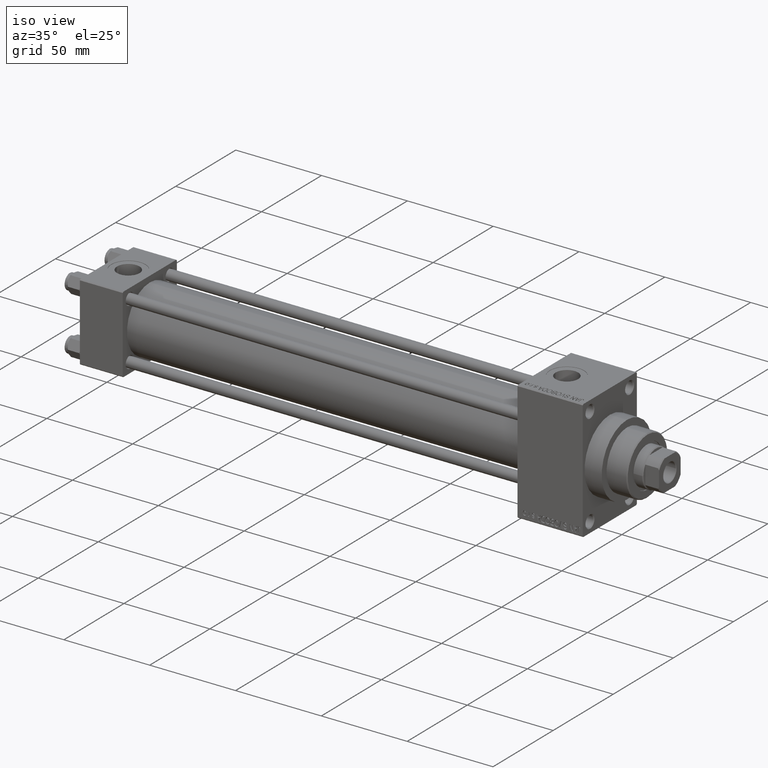
[diagram: clean part render]
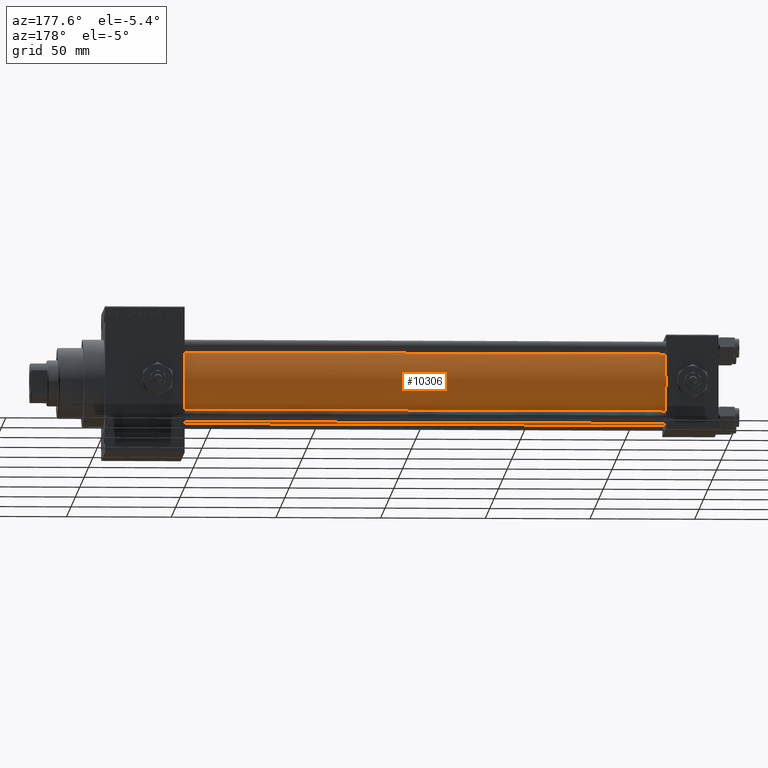
[diagram: tour spotlight — one face highlighted and labeled with its STEP entity id]
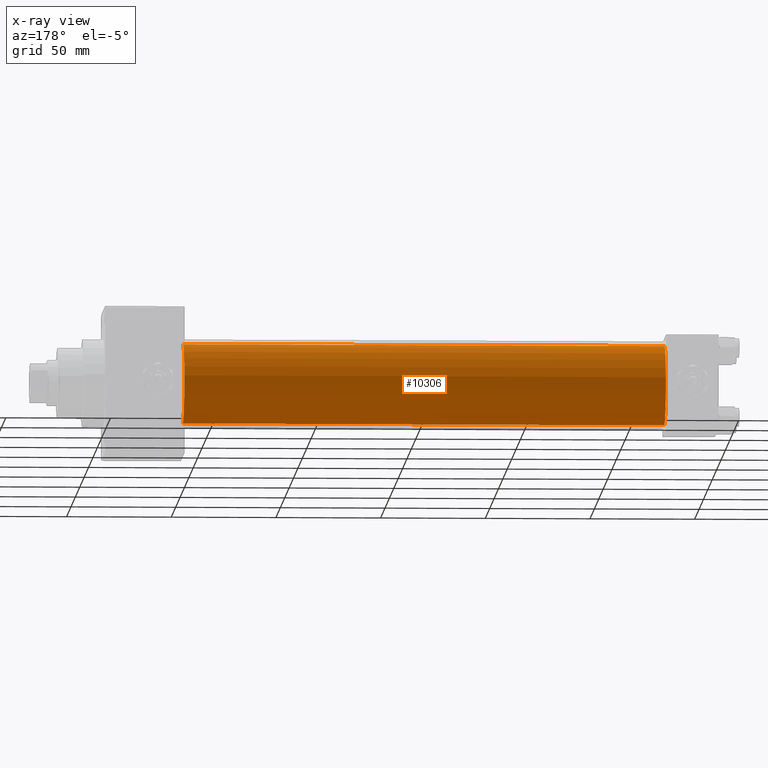
[diagram: x-ray of the same camera — body ghosted, this tour face saturated]
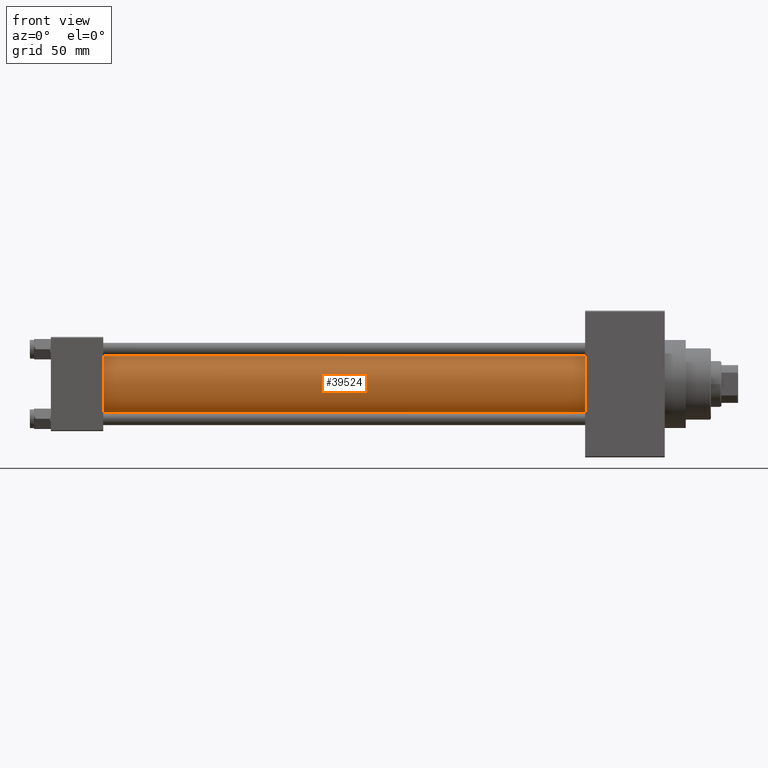
[diagram: tour spotlight — one face highlighted and labeled with its STEP entity id]
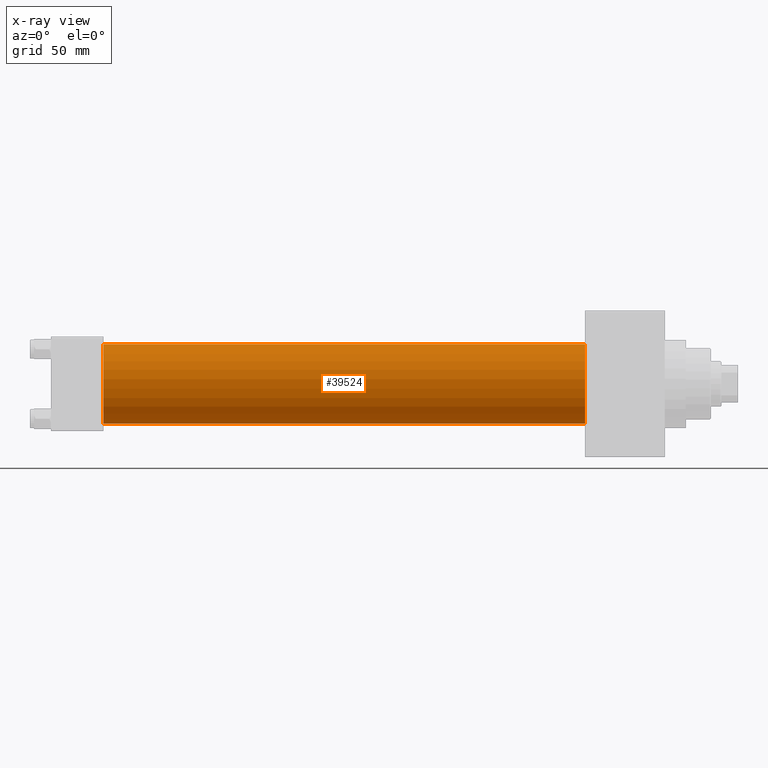
[diagram: x-ray of the same camera — body ghosted, this tour face saturated]
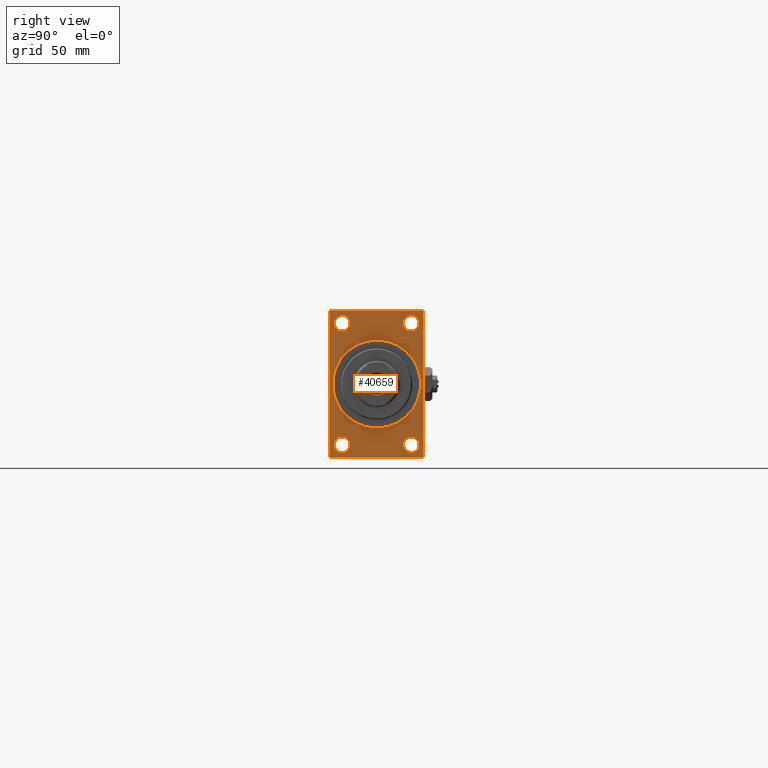
[diagram: tour spotlight — one face highlighted and labeled with its STEP entity id]
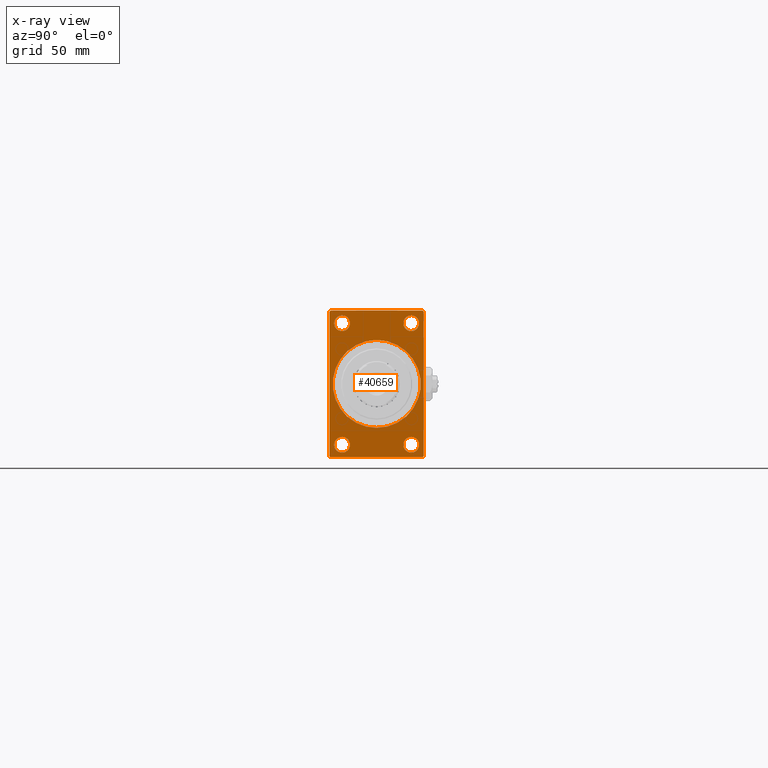
[diagram: x-ray of the same camera — body ghosted, this tour face saturated]
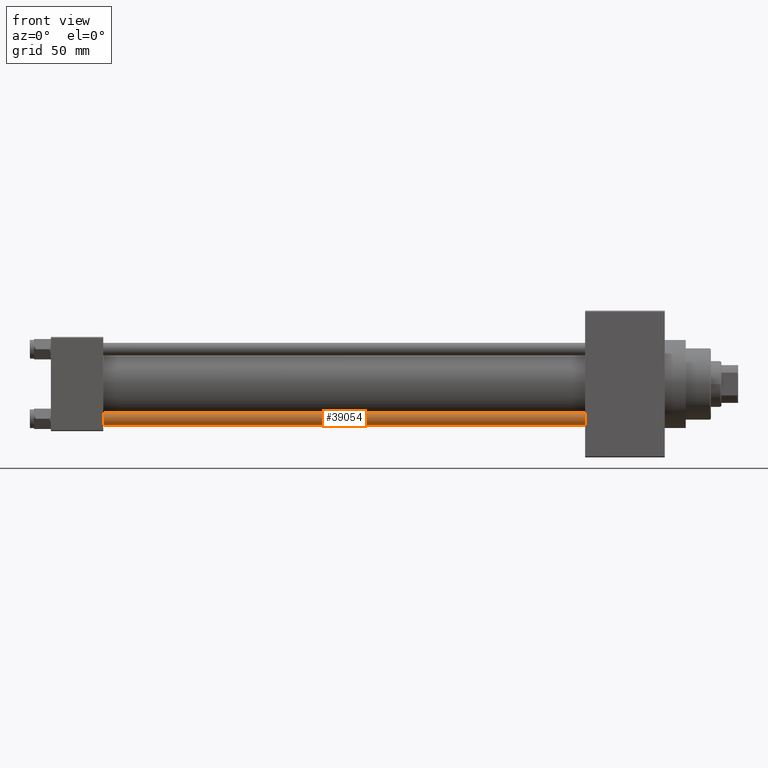
[diagram: tour spotlight — one face highlighted and labeled with its STEP entity id]
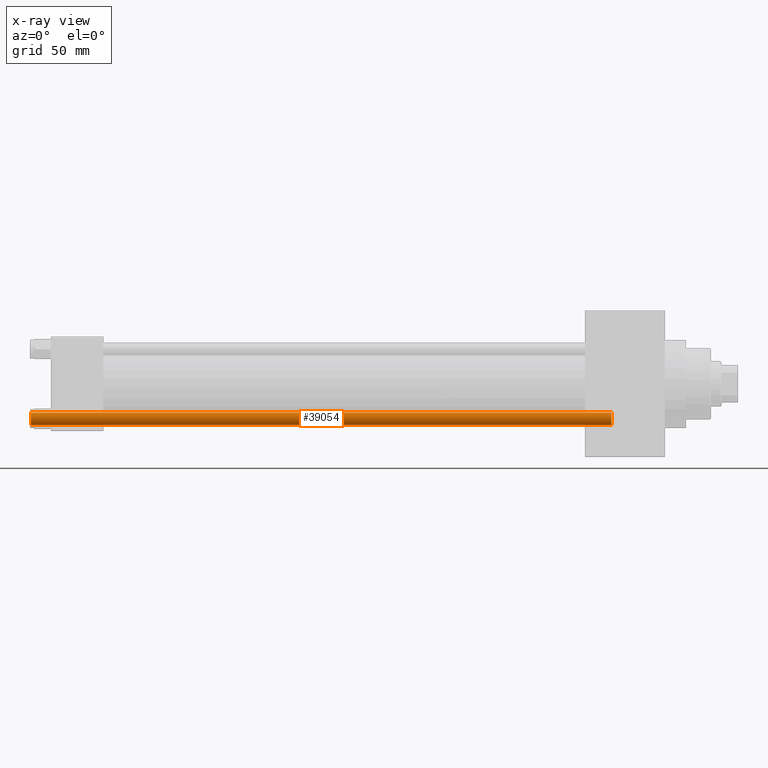
[diagram: x-ray of the same camera — body ghosted, this tour face saturated]
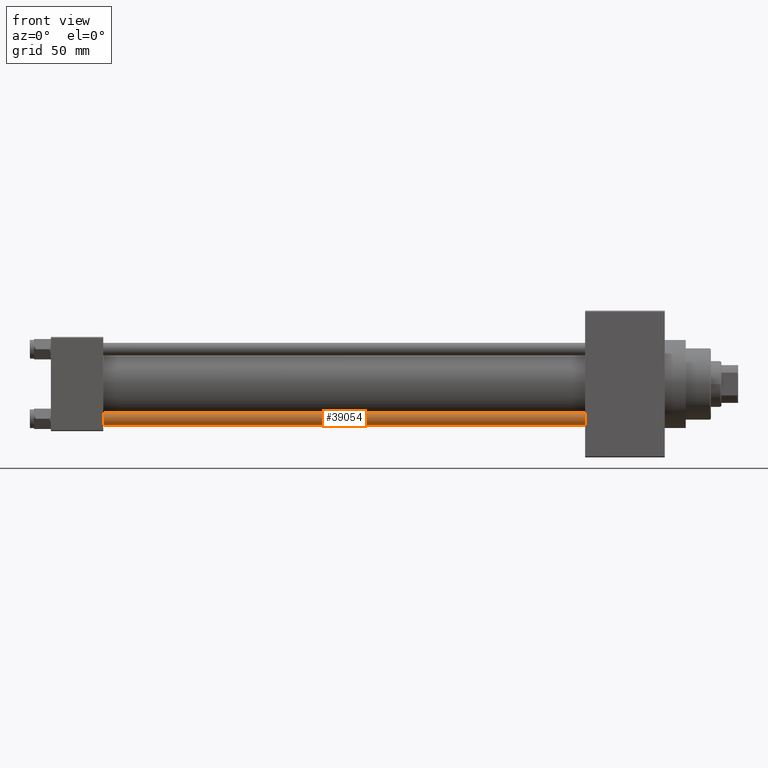
[diagram: tour spotlight — one face highlighted and labeled with its STEP entity id]
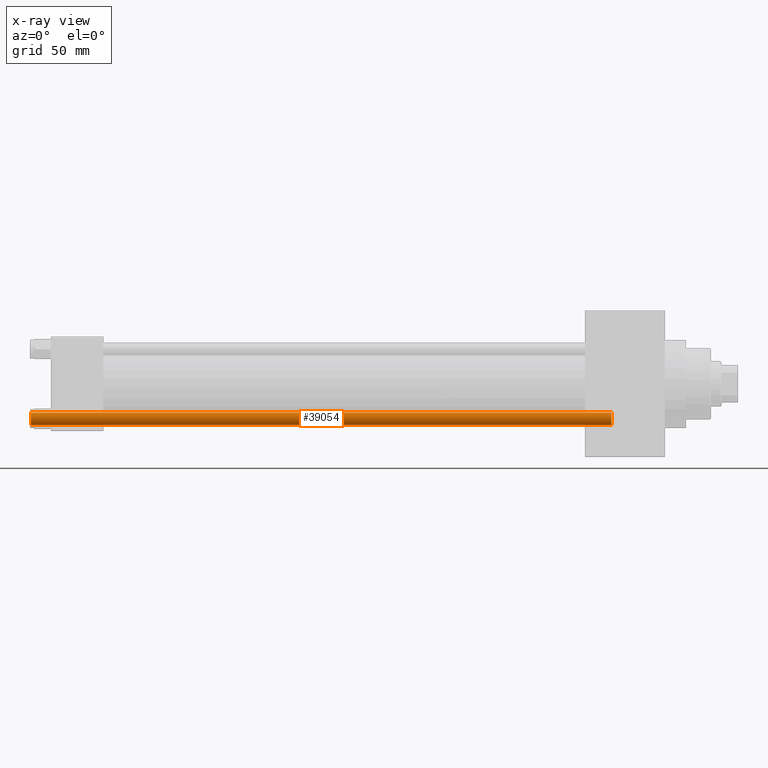
[diagram: x-ray of the same camera — body ghosted, this tour face saturated]
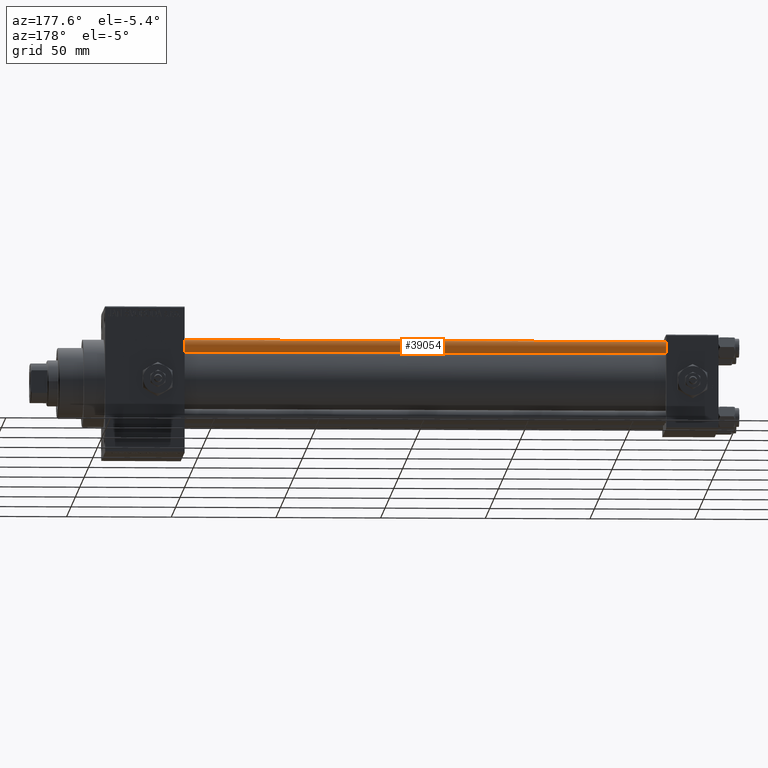
[diagram: tour spotlight — one face highlighted and labeled with its STEP entity id]
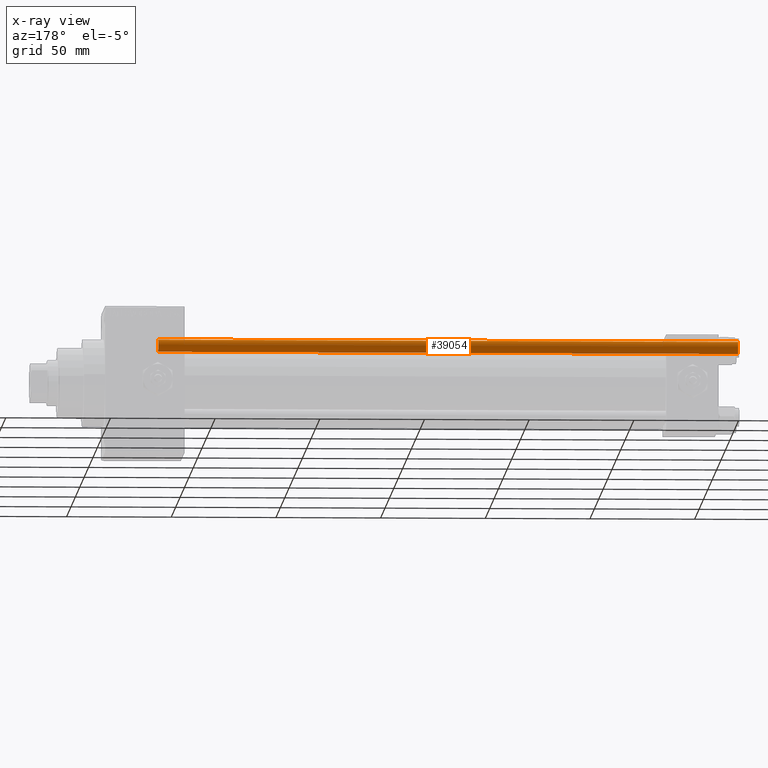
[diagram: x-ray of the same camera — body ghosted, this tour face saturated]
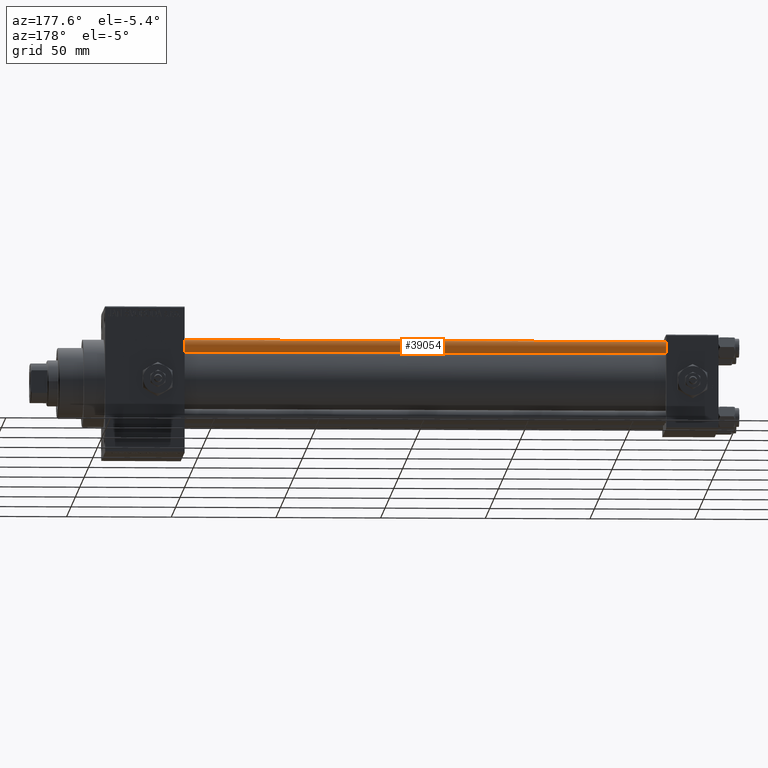
[diagram: tour spotlight — one face highlighted and labeled with its STEP entity id]
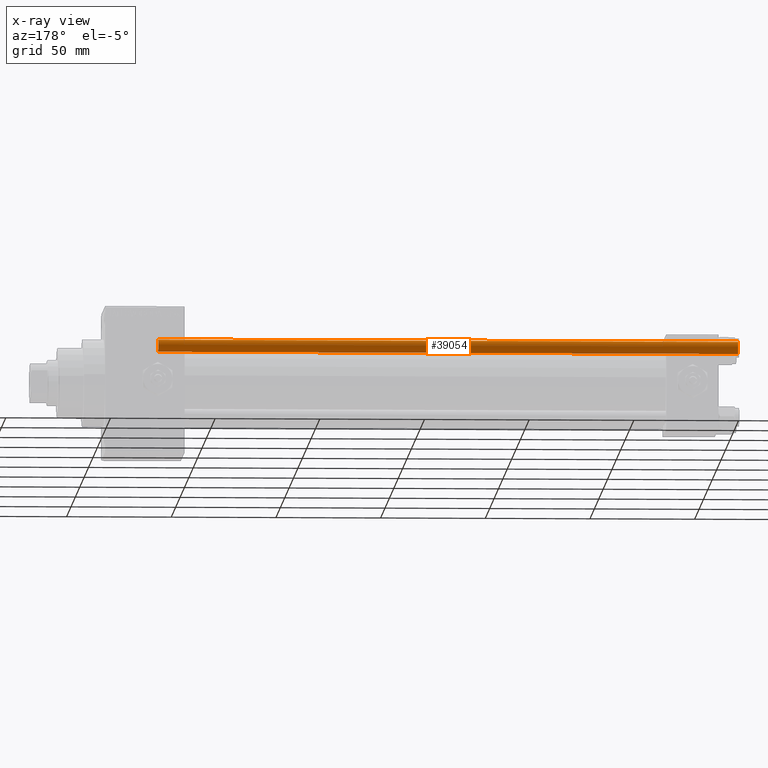
[diagram: x-ray of the same camera — body ghosted, this tour face saturated]
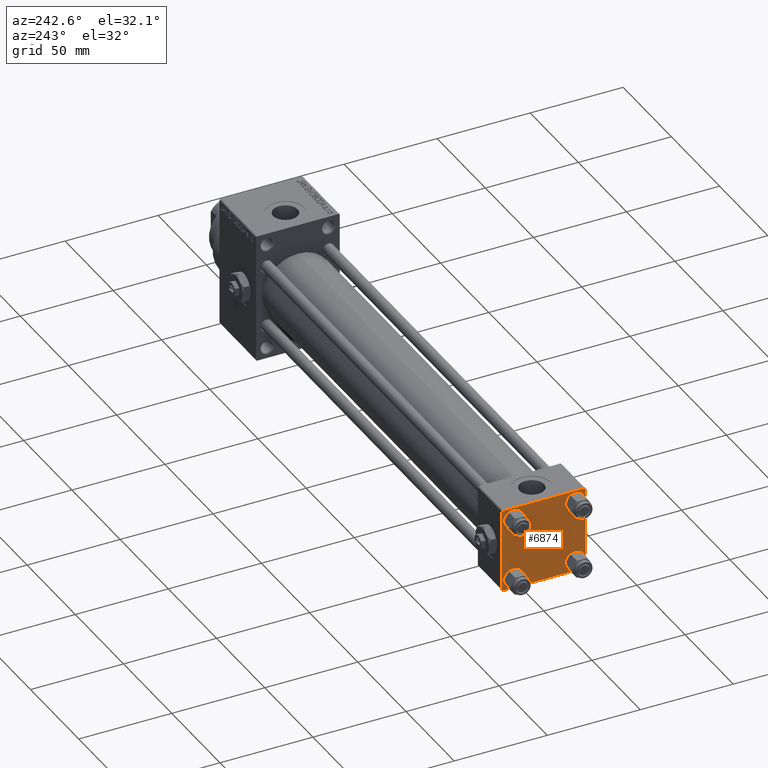
[diagram: tour spotlight — one face highlighted and labeled with its STEP entity id]
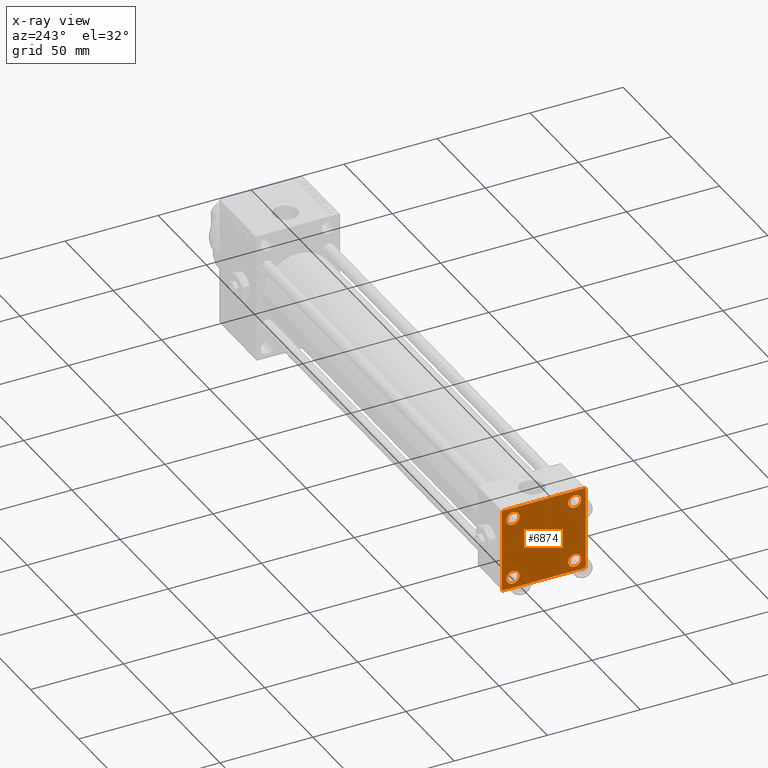
[diagram: x-ray of the same camera — body ghosted, this tour face saturated]
A machine part: a face-by-face anatomy tour. The part has 1201 B-rep faces; the first image is the clean iso view, then the 8 largest visible faces are spotlighted one at a time (largest first), each with its STEP entity span.

Face 1 — auxiliary view, entity #10306. An x-ray twin of the same camera follows (body ghosted, this face saturated) — the face is partly hidden behind the body. In plain terms, the highlighted cylindrical surface (partial cylindrical patch) has radius 19 mm, axis along (-1, -0, -0).
Definition (entity closure, byte-faithful):
#661 = DIRECTION ( 'NONE',  ( -1.000000000000000000, -0.000000000000000000, -0.000000000000000000 ) ) ;
#2758 = LINE ( 'NONE', #23066, #18360 ) ;
#4238 = CARTESIAN_POINT ( 'NONE',  ( 24.99999999999999289, -2.752562955852396712E-16, -19.00000000000000000 ) ) ;
#5123 = FACE_OUTER_BOUND ( 'NONE', #20737, .T. ) ;
#5631 = AXIS2_PLACEMENT_3D ( 'NONE', #10179, #17880, #25341 ) ;
#5919 = LINE ( 'NONE', #8907, #48787 ) ;
#7961 = EDGE_CURVE ( 'NONE', #47097, #36733, #13530, .T. ) ;
#8907 = CARTESIAN_POINT ( 'NONE',  ( 255.0000000000000000, -2.602085213965210642E-15, 19.00000000000000000 ) ) ;
#8971 = VERTEX_POINT ( 'NONE', #13657 ) ;
#9030 = EDGE_CURVE ( 'NONE', #28930, #47097, #2758, .T. ) ;
#9233 = CARTESIAN_POINT ( 'NONE',  ( 24.99999999999999289, -2.602085213965210642E-15, 19.00000000000000000 ) ) ;
#10179 = CARTESIAN_POINT ( 'NONE',  ( 24.99999999999999289, -2.602085213965210642E-15, 0.000000000000000000 ) ) ;
#10271 = ORIENTED_EDGE ( 'NONE', *, *, #9030, .T. ) ;
#10306 = ADVANCED_FACE ( 'NONE', ( #5123 ), #35405, .T. ) ;
#13530 = CIRCLE ( 'NONE', #5631, 19.00000000000000000 ) ;
#13657 = CARTESIAN_POINT ( 'NONE',  ( 255.0000000000000000, -2.602085213965210642E-15, 19.00000000000000000 ) ) ;
#16043 = DIRECTION ( 'NONE',  ( 0.000000000000000000, 0.000000000000000000, 1.000000000000000000 ) ) ;
#17880 = DIRECTION ( 'NONE',  ( 1.000000000000000000, -0.000000000000000000, 0.000000000000000000 ) ) ;
#18360 = VECTOR ( 'NONE', #22100, 1000.000000000000000 ) ;
#20737 = EDGE_LOOP ( 'NONE', ( #35192, #10271, #47744, #42783 ) ) ;
#22027 = DIRECTION ( 'NONE',  ( 1.000000000000000000, 0.000000000000000000, 0.000000000000000000 ) ) ;
#22100 = DIRECTION ( 'NONE',  ( -1.000000000000000000, -0.000000000000000000, -0.000000000000000000 ) ) ;
#23066 = CARTESIAN_POINT ( 'NONE',  ( 255.0000000000000000, -2.752562955852396712E-16, -19.00000000000000000 ) ) ;
#25064 = EDGE_CURVE ( 'NONE', #8971, #36733, #5919, .T. ) ;
#25341 = DIRECTION ( 'NONE',  ( 0.000000000000000000, 0.000000000000000000, 1.000000000000000000 ) ) ;
#25771 = CARTESIAN_POINT ( 'NONE',  ( 255.0000000000000000, -2.602085213965210642E-15, 0.000000000000000000 ) ) ;
#28930 = VERTEX_POINT ( 'NONE', #45391 ) ;
#33965 = AXIS2_PLACEMENT_3D ( 'NONE', #25771, #22027, #40912 ) ;
#34666 = CARTESIAN_POINT ( 'NONE',  ( 255.0000000000000000, -2.602085213965210642E-15, 0.000000000000000000 ) ) ;
#34888 = AXIS2_PLACEMENT_3D ( 'NONE', #34666, #661, #16043 ) ;
#35192 = ORIENTED_EDGE ( 'NONE', *, *, #38256, .F. ) ;
#35405 = CYLINDRICAL_SURFACE ( 'NONE', #34888, 19.00000000000000000 ) ;
#36733 = VERTEX_POINT ( 'NONE', #9233 ) ;
#38256 = EDGE_CURVE ( 'NONE', #28930, #8971, #42732, .T. ) ;
#40912 = DIRECTION ( 'NONE',  ( 0.000000000000000000, 0.000000000000000000, -1.000000000000000000 ) ) ;
#42732 = CIRCLE ( 'NONE', #33965, 19.00000000000000000 ) ;
#42783 = ORIENTED_EDGE ( 'NONE', *, *, #25064, .F. ) ;
#43672 = DIRECTION ( 'NONE',  ( -1.000000000000000000, -0.000000000000000000, -0.000000000000000000 ) ) ;
#45391 = CARTESIAN_POINT ( 'NONE',  ( 255.0000000000000000, -2.752562955852396712E-16, -19.00000000000000000 ) ) ;
#47097 = VERTEX_POINT ( 'NONE', #4238 ) ;
#47744 = ORIENTED_EDGE ( 'NONE', *, *, #7961, .T. ) ;
#48787 = VECTOR ( 'NONE', #43672, 1000.000000000000000 ) ;

Face 2 — front view, entity #39524. An x-ray twin of the same camera follows (body ghosted, this face saturated) — the face is partly hidden behind the body. In plain terms, the highlighted cylindrical surface (partial cylindrical patch) has radius 19 mm, axis along (-1, -0, -0).
Definition (entity closure, byte-faithful):
#1812 = CARTESIAN_POINT ( 'NONE',  ( 24.99999999999999289, -2.602085213965210642E-15, 0.000000000000000000 ) ) ;
#2758 = LINE ( 'NONE', #23066, #18360 ) ;
#2908 = EDGE_LOOP ( 'NONE', ( #23637, #36185, #34454, #19284 ) ) ;
#3057 = DIRECTION ( 'NONE',  ( 0.000000000000000000, 0.000000000000000000, 1.000000000000000000 ) ) ;
#4238 = CARTESIAN_POINT ( 'NONE',  ( 24.99999999999999289, -2.752562955852396712E-16, -19.00000000000000000 ) ) ;
#5919 = LINE ( 'NONE', #8907, #48787 ) ;
#6777 = CARTESIAN_POINT ( 'NONE',  ( 255.0000000000000000, -2.602085213965210642E-15, 0.000000000000000000 ) ) ;
#8907 = CARTESIAN_POINT ( 'NONE',  ( 255.0000000000000000, -2.602085213965210642E-15, 19.00000000000000000 ) ) ;
#8971 = VERTEX_POINT ( 'NONE', #13657 ) ;
#9008 = CARTESIAN_POINT ( 'NONE',  ( 255.0000000000000000, -2.602085213965210642E-15, 0.000000000000000000 ) ) ;
#9030 = EDGE_CURVE ( 'NONE', #28930, #47097, #2758, .T. ) ;
#9233 = CARTESIAN_POINT ( 'NONE',  ( 24.99999999999999289, -2.602085213965210642E-15, 19.00000000000000000 ) ) ;
#9267 = AXIS2_PLACEMENT_3D ( 'NONE', #1812, #16942, #32089 ) ;
#10161 = AXIS2_PLACEMENT_3D ( 'NONE', #9008, #24157, #39294 ) ;
#10498 = FACE_OUTER_BOUND ( 'NONE', #2908, .T. ) ;
#13657 = CARTESIAN_POINT ( 'NONE',  ( 255.0000000000000000, -2.602085213965210642E-15, 19.00000000000000000 ) ) ;
#16942 = DIRECTION ( 'NONE',  ( 1.000000000000000000, -0.000000000000000000, 0.000000000000000000 ) ) ;
#18360 = VECTOR ( 'NONE', #22100, 1000.000000000000000 ) ;
#19284 = ORIENTED_EDGE ( 'NONE', *, *, #30152, .T. ) ;
#21923 = DIRECTION ( 'NONE',  ( -1.000000000000000000, -0.000000000000000000, -0.000000000000000000 ) ) ;
#22100 = DIRECTION ( 'NONE',  ( -1.000000000000000000, -0.000000000000000000, -0.000000000000000000 ) ) ;
#23066 = CARTESIAN_POINT ( 'NONE',  ( 255.0000000000000000, -2.752562955852396712E-16, -19.00000000000000000 ) ) ;
#23553 = CIRCLE ( 'NONE', #9267, 19.00000000000000000 ) ;
#23637 = ORIENTED_EDGE ( 'NONE', *, *, #9030, .F. ) ;
#24157 = DIRECTION ( 'NONE',  ( 1.000000000000000000, 0.000000000000000000, 0.000000000000000000 ) ) ;
#25064 = EDGE_CURVE ( 'NONE', #8971, #36733, #5919, .T. ) ;
#25665 = CYLINDRICAL_SURFACE ( 'NONE', #46698, 19.00000000000000000 ) ;
#28930 = VERTEX_POINT ( 'NONE', #45391 ) ;
#30152 = EDGE_CURVE ( 'NONE', #36733, #47097, #23553, .T. ) ;
#32089 = DIRECTION ( 'NONE',  ( 0.000000000000000000, 0.000000000000000000, 1.000000000000000000 ) ) ;
#33923 = CIRCLE ( 'NONE', #10161, 19.00000000000000000 ) ;
#34454 = ORIENTED_EDGE ( 'NONE', *, *, #25064, .T. ) ;
#36185 = ORIENTED_EDGE ( 'NONE', *, *, #37345, .F. ) ;
#36733 = VERTEX_POINT ( 'NONE', #9233 ) ;
#37345 = EDGE_CURVE ( 'NONE', #8971, #28930, #33923, .T. ) ;
#39294 = DIRECTION ( 'NONE',  ( 0.000000000000000000, 0.000000000000000000, -1.000000000000000000 ) ) ;
#39524 = ADVANCED_FACE ( 'NONE', ( #10498 ), #25665, .T. ) ;
#43672 = DIRECTION ( 'NONE',  ( -1.000000000000000000, -0.000000000000000000, -0.000000000000000000 ) ) ;
#45391 = CARTESIAN_POINT ( 'NONE',  ( 255.0000000000000000, -2.752562955852396712E-16, -19.00000000000000000 ) ) ;
#46698 = AXIS2_PLACEMENT_3D ( 'NONE', #6777, #21923, #3057 ) ;
#47097 = VERTEX_POINT ( 'NONE', #4238 ) ;
#48787 = VECTOR ( 'NONE', #43672, 1000.000000000000000 ) ;

Face 3 — right view, entity #40659. An x-ray twin of the same camera follows (body ghosted, this face saturated) — the face is partly hidden behind the body. In plain terms, the highlighted planar face has unit normal (-1, 0, 0).
Definition (entity closure, byte-faithful):
#86 = CARTESIAN_POINT ( 'NONE',  ( 293.0000000000000000, -16.50000000000000000, -25.24999999999993605 ) ) ;
#609 = AXIS2_PLACEMENT_3D ( 'NONE', #15969, #9263, #12004 ) ;
#762 = CARTESIAN_POINT ( 'NONE',  ( 293.0000000000000000, -22.50000000000000355, 35.00000000000000000 ) ) ;
#844 = EDGE_CURVE ( 'NONE', #31355, #25077, #21951, .T. ) ;
#1410 = LINE ( 'NONE', #39889, #22448 ) ;
#1925 = VERTEX_POINT ( 'NONE', #37284 ) ;
#2123 = AXIS2_PLACEMENT_3D ( 'NONE', #48329, #29215, #22001 ) ;
#2334 = CARTESIAN_POINT ( 'NONE',  ( 293.0000000000000000, 16.50000000000000000, -25.24999999999993605 ) ) ;
#2379 = DIRECTION ( 'NONE',  ( -1.000000000000000000, -0.000000000000000000, -0.000000000000000000 ) ) ;
#2567 = CARTESIAN_POINT ( 'NONE',  ( 293.0000000000000000, 22.49999999999999645, 34.50000000000000000 ) ) ;
#2955 = DIRECTION ( 'NONE',  ( -1.000000000000000000, -0.000000000000000000, -0.000000000000000000 ) ) ;
#4053 = VERTEX_POINT ( 'NONE', #86 ) ;
#4126 = CARTESIAN_POINT ( 'NONE',  ( 293.0000000000000000, 16.50000000000000000, 32.75000000000006395 ) ) ;
#4510 = LINE ( 'NONE', #26392, #32608 ) ;
#4518 = DIRECTION ( 'NONE',  ( -0.000000000000000000, 0.000000000000000000, 1.000000000000000000 ) ) ;
#4706 = ORIENTED_EDGE ( 'NONE', *, *, #36574, .T. ) ;
#4787 = AXIS2_PLACEMENT_3D ( 'NONE', #43062, #47029, #42563 ) ;
#4906 = CARTESIAN_POINT ( 'NONE',  ( 293.0000000000000000, 0.000000000000000000, 21.00000000000000000 ) ) ;
#4910 = VERTEX_POINT ( 'NONE', #42180 ) ;
#5264 = CIRCLE ( 'NONE', #17961, 3.750000000000055511 ) ;
#5487 = CARTESIAN_POINT ( 'NONE',  ( 293.0000000000000000, -22.50000000000000355, -34.50000000000000000 ) ) ;
#5672 = CARTESIAN_POINT ( 'NONE',  ( 293.0000000000000000, 22.49999999999999645, -34.50000000000000000 ) ) ;
#5675 = EDGE_CURVE ( 'NONE', #4910, #25367, #26138, .T. ) ;
#5706 = ORIENTED_EDGE ( 'NONE', *, *, #7850, .T. ) ;
#6281 = AXIS2_PLACEMENT_3D ( 'NONE', #22401, #22879, #14933 ) ;
#6342 = VERTEX_POINT ( 'NONE', #34659 ) ;
#7068 = CARTESIAN_POINT ( 'NONE',  ( 293.0000000000000000, 16.50000000000000000, 29.00000000000000355 ) ) ;
#7629 = CARTESIAN_POINT ( 'NONE',  ( 293.0000000000000000, 22.49999999999999645, -35.00000000000000000 ) ) ;
#7850 = EDGE_CURVE ( 'NONE', #46018, #45824, #42984, .T. ) ;
#7869 = DIRECTION ( 'NONE',  ( 1.000000000000000000, 0.000000000000000000, 0.000000000000000000 ) ) ;
#8232 = CARTESIAN_POINT ( 'NONE',  ( 293.0000000000000000, 0.000000000000000000, 0.000000000000000000 ) ) ;
#8290 = VERTEX_POINT ( 'NONE', #16508 ) ;
#8308 = EDGE_CURVE ( 'NONE', #8290, #4053, #24681, .T. ) ;
#8579 = VECTOR ( 'NONE', #11496, 1000.000000000000000 ) ;
#9004 = VERTEX_POINT ( 'NONE', #32780 ) ;
#9102 = ORIENTED_EDGE ( 'NONE', *, *, #33258, .T. ) ;
#9195 = DIRECTION ( 'NONE',  ( -0.000000000000000000, -0.7071067811865672237, -0.7071067811865279218 ) ) ;
#9263 = DIRECTION ( 'NONE',  ( -1.000000000000000000, -0.000000000000000000, -0.000000000000000000 ) ) ;
#9546 = EDGE_CURVE ( 'NONE', #31355, #25802, #4510, .T. ) ;
#10028 = CIRCLE ( 'NONE', #2123, 3.750000000000058620 ) ;
#11496 = DIRECTION ( 'NONE',  ( 0.000000000000000000, 0.7071067811865279218, -0.7071067811865671127 ) ) ;
#11903 = CIRCLE ( 'NONE', #35684, 21.00000000000000000 ) ;
#12004 = DIRECTION ( 'NONE',  ( 0.000000000000000000, 0.000000000000000000, 1.000000000000000000 ) ) ;
#12569 = DIRECTION ( 'NONE',  ( -0.000000000000000000, 0.7071067811865672237, 0.7071067811865279218 ) ) ;
#12837 = VERTEX_POINT ( 'NONE', #33614 ) ;
#13321 = ORIENTED_EDGE ( 'NONE', *, *, #8308, .T. ) ;
#14348 = LINE ( 'NONE', #29513, #35075 ) ;
#14933 = DIRECTION ( 'NONE',  ( 0.000000000000000000, 0.000000000000000000, -1.000000000000000000 ) ) ;
#15038 = VERTEX_POINT ( 'NONE', #2334 ) ;
#15692 = LINE ( 'NONE', #41797, #8579 ) ;
#15895 = DIRECTION ( 'NONE',  ( 0.000000000000000000, 0.000000000000000000, -1.000000000000000000 ) ) ;
#15969 = CARTESIAN_POINT ( 'NONE',  ( 293.0000000000000000, 16.50000000000000000, -28.99999999999999289 ) ) ;
#16308 = EDGE_CURVE ( 'NONE', #25802, #46018, #14348, .T. ) ;
#16508 = CARTESIAN_POINT ( 'NONE',  ( 293.0000000000000000, -16.50000000000000000, -32.75000000000005684 ) ) ;
#16579 = EDGE_CURVE ( 'NONE', #12837, #25077, #1410, .T. ) ;
#16998 = AXIS2_PLACEMENT_3D ( 'NONE', #25667, #25418, #40559 ) ;
#17147 = ORIENTED_EDGE ( 'NONE', *, *, #9546, .T. ) ;
#17766 = DIRECTION ( 'NONE',  ( 0.000000000000000000, 0.000000000000000000, 1.000000000000000000 ) ) ;
#17961 = AXIS2_PLACEMENT_3D ( 'NONE', #25798, #2955, #44908 ) ;
#19174 = EDGE_LOOP ( 'NONE', ( #36673, #4706, #25581, #28272, #36721, #17147, #30735, #5706 ) ) ;
#19204 = ORIENTED_EDGE ( 'NONE', *, *, #44542, .T. ) ;
#19429 = CARTESIAN_POINT ( 'NONE',  ( 293.0000000000000000, -22.50000000000000355, 34.50000000000000000 ) ) ;
#19535 = CARTESIAN_POINT ( 'NONE',  ( 293.0000000000000000, 0.000000000000000000, 0.000000000000000000 ) ) ;
#19662 = FACE_BOUND ( 'NONE', #26954, .T. ) ;
#19708 = DIRECTION ( 'NONE',  ( 0.000000000000000000, 0.000000000000000000, 1.000000000000000000 ) ) ;
#19808 = ORIENTED_EDGE ( 'NONE', *, *, #27502, .T. ) ;
#20403 = EDGE_CURVE ( 'NONE', #15038, #9004, #28124, .T. ) ;
#20634 = FACE_BOUND ( 'NONE', #36369, .T. ) ;
#21244 = DIRECTION ( 'NONE',  ( -1.000000000000000000, -0.000000000000000000, -0.000000000000000000 ) ) ;
#21951 = LINE ( 'NONE', #34322, #46212 ) ;
#22001 = DIRECTION ( 'NONE',  ( 0.000000000000000000, 0.000000000000000000, 1.000000000000000000 ) ) ;
#22016 = VERTEX_POINT ( 'NONE', #4126 ) ;
#22029 = CIRCLE ( 'NONE', #609, 3.750000000000055511 ) ;
#22401 = CARTESIAN_POINT ( 'NONE',  ( 293.0000000000000000, 0.000000000000000000, 0.000000000000000000 ) ) ;
#22448 = VECTOR ( 'NONE', #12569, 1000.000000000000000 ) ;
#22879 = DIRECTION ( 'NONE',  ( 1.000000000000000000, 0.000000000000000000, 0.000000000000000000 ) ) ;
#23386 = FACE_OUTER_BOUND ( 'NONE', #19174, .T. ) ;
#24422 = CARTESIAN_POINT ( 'NONE',  ( 293.0000000000000000, -16.50000000000000000, 29.00000000000000711 ) ) ;
#24432 = EDGE_LOOP ( 'NONE', ( #42710, #48476 ) ) ;
#24681 = CIRCLE ( 'NONE', #38135, 3.750000000000055511 ) ;
#24970 = DIRECTION ( 'NONE',  ( 0.000000000000000000, 0.000000000000000000, 1.000000000000000000 ) ) ;
#25077 = VERTEX_POINT ( 'NONE', #5672 ) ;
#25367 = VERTEX_POINT ( 'NONE', #37084 ) ;
#25418 = DIRECTION ( 'NONE',  ( -1.000000000000000000, -0.000000000000000000, -0.000000000000000000 ) ) ;
#25581 = ORIENTED_EDGE ( 'NONE', *, *, #28932, .F. ) ;
#25667 = CARTESIAN_POINT ( 'NONE',  ( 293.0000000000000000, 16.50000000000000000, -28.99999999999999289 ) ) ;
#25798 = CARTESIAN_POINT ( 'NONE',  ( 293.0000000000000000, -16.50000000000000000, -28.99999999999999289 ) ) ;
#25802 = VERTEX_POINT ( 'NONE', #48392 ) ;
#26138 = CIRCLE ( 'NONE', #38808, 3.750000000000055511 ) ;
#26392 = CARTESIAN_POINT ( 'NONE',  ( 293.0000000000000000, 22.00000000000002132, 35.00000000000000000 ) ) ;
#26954 = EDGE_LOOP ( 'NONE', ( #13321, #9102 ) ) ;
#26992 = DIRECTION ( 'NONE',  ( 0.000000000000000000, 0.000000000000000000, -1.000000000000000000 ) ) ;
#27078 = VERTEX_POINT ( 'NONE', #33423 ) ;
#27413 = DIRECTION ( 'NONE',  ( -1.000000000000000000, -0.000000000000000000, -0.000000000000000000 ) ) ;
#27502 = EDGE_CURVE ( 'NONE', #27078, #22016, #40914, .T. ) ;
#28124 = CIRCLE ( 'NONE', #16998, 3.750000000000055511 ) ;
#28272 = ORIENTED_EDGE ( 'NONE', *, *, #16579, .T. ) ;
#28932 = EDGE_CURVE ( 'NONE', #12837, #6342, #48634, .T. ) ;
#29140 = CIRCLE ( 'NONE', #6281, 21.00000000000000000 ) ;
#29172 = EDGE_CURVE ( 'NONE', #22016, #27078, #10028, .T. ) ;
#29215 = DIRECTION ( 'NONE',  ( -1.000000000000000000, -0.000000000000000000, -0.000000000000000000 ) ) ;
#29513 = CARTESIAN_POINT ( 'NONE',  ( 293.0000000000000000, 22.49999999999999645, 35.00000000000000000 ) ) ;
#29514 = DIRECTION ( 'NONE',  ( 0.000000000000000000, -1.000000000000000000, 0.000000000000000000 ) ) ;
#30735 = ORIENTED_EDGE ( 'NONE', *, *, #16308, .T. ) ;
#31355 = VERTEX_POINT ( 'NONE', #2567 ) ;
#31411 = VECTOR ( 'NONE', #29514, 1000.000000000000000 ) ;
#31440 = EDGE_CURVE ( 'NONE', #35130, #1925, #29140, .T. ) ;
#32525 = VECTOR ( 'NONE', #9195, 1000.000000000000000 ) ;
#32608 = VECTOR ( 'NONE', #41531, 1000.000000000000000 ) ;
#32780 = CARTESIAN_POINT ( 'NONE',  ( 293.0000000000000000, 16.50000000000000000, -32.75000000000005684 ) ) ;
#33258 = EDGE_CURVE ( 'NONE', #4053, #8290, #5264, .T. ) ;
#33423 = CARTESIAN_POINT ( 'NONE',  ( 293.0000000000000000, 16.50000000000000000, 25.24999999999994671 ) ) ;
#33614 = CARTESIAN_POINT ( 'NONE',  ( 293.0000000000000000, 21.99999999999996803, -35.00000000000000000 ) ) ;
#33771 = CARTESIAN_POINT ( 'NONE',  ( 293.0000000000000000, -21.99999999999996092, 35.00000000000000000 ) ) ;
#34322 = CARTESIAN_POINT ( 'NONE',  ( 293.0000000000000000, 22.49999999999999645, 35.00000000000000000 ) ) ;
#34659 = CARTESIAN_POINT ( 'NONE',  ( 293.0000000000000000, -22.00000000000001776, -35.00000000000000000 ) ) ;
#34821 = ORIENTED_EDGE ( 'NONE', *, *, #31440, .F. ) ;
#35075 = VECTOR ( 'NONE', #44666, 1000.000000000000000 ) ;
#35130 = VERTEX_POINT ( 'NONE', #4906 ) ;
#35684 = AXIS2_PLACEMENT_3D ( 'NONE', #19535, #7869, #26992 ) ;
#35779 = FACE_BOUND ( 'NONE', #38076, .T. ) ;
#36199 = ORIENTED_EDGE ( 'NONE', *, *, #5675, .T. ) ;
#36369 = EDGE_LOOP ( 'NONE', ( #19808, #45672 ) ) ;
#36574 = EDGE_CURVE ( 'NONE', #44904, #6342, #15692, .T. ) ;
#36673 = ORIENTED_EDGE ( 'NONE', *, *, #38620, .T. ) ;
#36721 = ORIENTED_EDGE ( 'NONE', *, *, #844, .F. ) ;
#37084 = CARTESIAN_POINT ( 'NONE',  ( 293.0000000000000000, -16.50000000000000000, 25.24999999999995381 ) ) ;
#37284 = CARTESIAN_POINT ( 'NONE',  ( 293.0000000000000000, 2.571758278209441661E-15, -21.00000000000000000 ) ) ;
#37587 = DIRECTION ( 'NONE',  ( 0.000000000000000000, 0.000000000000000000, -1.000000000000000000 ) ) ;
#38076 = EDGE_LOOP ( 'NONE', ( #34821, #42972 ) ) ;
#38135 = AXIS2_PLACEMENT_3D ( 'NONE', #47068, #2379, #24970 ) ;
#38369 = EDGE_LOOP ( 'NONE', ( #19204, #36199 ) ) ;
#38503 = LINE ( 'NONE', #762, #48194 ) ;
#38528 = DIRECTION ( 'NONE',  ( -1.000000000000000000, 0.000000000000000000, -0.000000000000000000 ) ) ;
#38620 = EDGE_CURVE ( 'NONE', #45824, #44904, #38503, .T. ) ;
#38808 = AXIS2_PLACEMENT_3D ( 'NONE', #24422, #27413, #19708 ) ;
#39433 = EDGE_CURVE ( 'NONE', #9004, #15038, #22029, .T. ) ;
#39512 = FACE_BOUND ( 'NONE', #24432, .T. ) ;
#39889 = CARTESIAN_POINT ( 'NONE',  ( 293.0000000000000000, 22.49999999999999645, -34.50000000000000000 ) ) ;
#40559 = DIRECTION ( 'NONE',  ( 0.000000000000000000, 0.000000000000000000, 1.000000000000000000 ) ) ;
#40659 = ADVANCED_FACE ( 'NONE', ( #42261, #19662, #39512, #20634, #35779, #23386 ), #47216, .F. ) ;
#40914 = CIRCLE ( 'NONE', #47245, 3.750000000000058620 ) ;
#41531 = DIRECTION ( 'NONE',  ( 0.000000000000000000, -0.7071067811865279218, 0.7071067811865671127 ) ) ;
#41797 = CARTESIAN_POINT ( 'NONE',  ( 293.0000000000000000, -22.00000000000002842, -35.00000000000000000 ) ) ;
#42046 = CIRCLE ( 'NONE', #4787, 3.750000000000055511 ) ;
#42180 = CARTESIAN_POINT ( 'NONE',  ( 293.0000000000000000, -16.50000000000000000, 32.75000000000006395 ) ) ;
#42261 = FACE_BOUND ( 'NONE', #38369, .T. ) ;
#42563 = DIRECTION ( 'NONE',  ( 0.000000000000000000, 0.000000000000000000, 1.000000000000000000 ) ) ;
#42710 = ORIENTED_EDGE ( 'NONE', *, *, #39433, .T. ) ;
#42972 = ORIENTED_EDGE ( 'NONE', *, *, #45129, .F. ) ;
#42984 = LINE ( 'NONE', #43226, #32525 ) ;
#43062 = CARTESIAN_POINT ( 'NONE',  ( 293.0000000000000000, -16.50000000000000000, 29.00000000000000711 ) ) ;
#43226 = CARTESIAN_POINT ( 'NONE',  ( 293.0000000000000000, -22.50000000000000355, 34.50000000000000000 ) ) ;
#43513 = AXIS2_PLACEMENT_3D ( 'NONE', #8232, #38528, #4518 ) ;
#44542 = EDGE_CURVE ( 'NONE', #25367, #4910, #42046, .T. ) ;
#44666 = DIRECTION ( 'NONE',  ( 0.000000000000000000, -1.000000000000000000, 0.000000000000000000 ) ) ;
#44904 = VERTEX_POINT ( 'NONE', #5487 ) ;
#44908 = DIRECTION ( 'NONE',  ( 0.000000000000000000, 0.000000000000000000, 1.000000000000000000 ) ) ;
#45129 = EDGE_CURVE ( 'NONE', #1925, #35130, #11903, .T. ) ;
#45672 = ORIENTED_EDGE ( 'NONE', *, *, #29172, .T. ) ;
#45824 = VERTEX_POINT ( 'NONE', #19429 ) ;
#46018 = VERTEX_POINT ( 'NONE', #33771 ) ;
#46212 = VECTOR ( 'NONE', #37587, 1000.000000000000000 ) ;
#47029 = DIRECTION ( 'NONE',  ( -1.000000000000000000, -0.000000000000000000, -0.000000000000000000 ) ) ;
#47068 = CARTESIAN_POINT ( 'NONE',  ( 293.0000000000000000, -16.50000000000000000, -28.99999999999999289 ) ) ;
#47216 = PLANE ( 'NONE',  #43513 ) ;
#47245 = AXIS2_PLACEMENT_3D ( 'NONE', #7068, #21244, #17766 ) ;
#48194 = VECTOR ( 'NONE', #15895, 1000.000000000000000 ) ;
#48329 = CARTESIAN_POINT ( 'NONE',  ( 293.0000000000000000, 16.50000000000000000, 29.00000000000000355 ) ) ;
#48392 = CARTESIAN_POINT ( 'NONE',  ( 293.0000000000000000, 22.00000000000002132, 35.00000000000000000 ) ) ;
#48476 = ORIENTED_EDGE ( 'NONE', *, *, #20403, .T. ) ;
#48634 = LINE ( 'NONE', #7629, #31411 ) ;

Face 4 — front view, entity #39054. An x-ray twin of the same camera follows (body ghosted, this face saturated) — the face is partly hidden behind the body. In plain terms, the highlighted cylindrical surface (edge-blend (fillet) strip) has radius 3 mm, axis along (1, 0, 0).
Definition (entity closure, byte-faithful):
#4903 = VERTEX_POINT ( 'NONE', #15838 ) ;
#5543 = VERTEX_POINT ( 'NONE', #28698 ) ;
#8816 = CIRCLE ( 'NONE', #36584, 3.000000000000000444 ) ;
#9185 = VERTEX_POINT ( 'NONE', #15845 ) ;
#11579 = CARTESIAN_POINT ( 'NONE',  ( 0.000000000000000000, 0.000000000000000000, 278.0000000000000000 ) ) ;
#11986 = DIRECTION ( 'NONE',  ( 1.000000000000000000, 0.000000000000000000, 0.000000000000000000 ) ) ;
#11987 = EDGE_LOOP ( 'NONE', ( #31328, #40758, #22099, #30782 ) ) ;
#12907 = EDGE_CURVE ( 'NONE', #36178, #5543, #8816, .T. ) ;
#13063 = CARTESIAN_POINT ( 'NONE',  ( 3.000000000000000444, 3.673940397442060361E-16, 0.5000000000000559552 ) ) ;
#13422 = EDGE_CURVE ( 'NONE', #9185, #5543, #25691, .T. ) ;
#15298 = FACE_OUTER_BOUND ( 'NONE', #11987, .T. ) ;
#15838 = CARTESIAN_POINT ( 'NONE',  ( 3.000000000000000444, 3.673940397442060361E-16, 277.5000000000000568 ) ) ;
#15845 = CARTESIAN_POINT ( 'NONE',  ( -3.000000000000000444, 0.000000000000000000, 277.5000000000000568 ) ) ;
#18058 = AXIS2_PLACEMENT_3D ( 'NONE', #11579, #45844, #22522 ) ;
#21305 = DIRECTION ( 'NONE',  ( 1.000000000000000000, 0.000000000000000000, 0.000000000000000000 ) ) ;
#22099 = ORIENTED_EDGE ( 'NONE', *, *, #12907, .T. ) ;
#22522 = DIRECTION ( 'NONE',  ( -1.000000000000000000, 0.000000000000000000, 0.000000000000000000 ) ) ;
#23001 = CYLINDRICAL_SURFACE ( 'NONE', #18058, 3.000000000000000444 ) ;
#25027 = CIRCLE ( 'NONE', #40115, 3.000000000000000444 ) ;
#25691 = LINE ( 'NONE', #33116, #38989 ) ;
#27114 = EDGE_CURVE ( 'NONE', #9185, #4903, #25027, .T. ) ;
#28698 = CARTESIAN_POINT ( 'NONE',  ( -3.000000000000000444, 0.000000000000000000, 0.5000000000000559552 ) ) ;
#30782 = ORIENTED_EDGE ( 'NONE', *, *, #13422, .F. ) ;
#31102 = DIRECTION ( 'NONE',  ( -0.000000000000000000, -0.000000000000000000, 1.000000000000000000 ) ) ;
#31328 = ORIENTED_EDGE ( 'NONE', *, *, #27114, .T. ) ;
#33116 = CARTESIAN_POINT ( 'NONE',  ( -3.000000000000000444, 0.000000000000000000, 278.0000000000000000 ) ) ;
#34406 = CARTESIAN_POINT ( 'NONE',  ( 3.000000000000000444, 3.673940397442060361E-16, 278.0000000000000000 ) ) ;
#35315 = CARTESIAN_POINT ( 'NONE',  ( 0.000000000000000000, 0.000000000000000000, 0.5000000000000559552 ) ) ;
#35452 = CARTESIAN_POINT ( 'NONE',  ( 0.000000000000000000, 0.000000000000000000, 277.5000000000000568 ) ) ;
#36178 = VERTEX_POINT ( 'NONE', #13063 ) ;
#36584 = AXIS2_PLACEMENT_3D ( 'NONE', #35315, #31102, #11986 ) ;
#38989 = VECTOR ( 'NONE', #43815, 1000.000000000000000 ) ;
#39050 = EDGE_CURVE ( 'NONE', #4903, #36178, #41400, .T. ) ;
#39054 = ADVANCED_FACE ( 'NONE', ( #15298 ), #23001, .T. ) ;
#40115 = AXIS2_PLACEMENT_3D ( 'NONE', #35452, #43169, #21305 ) ;
#40252 = VECTOR ( 'NONE', #42120, 1000.000000000000000 ) ;
#40758 = ORIENTED_EDGE ( 'NONE', *, *, #39050, .T. ) ;
#41400 = LINE ( 'NONE', #34406, #40252 ) ;
#42120 = DIRECTION ( 'NONE',  ( -0.000000000000000000, -0.000000000000000000, -1.000000000000000000 ) ) ;
#43169 = DIRECTION ( 'NONE',  ( 0.000000000000000000, 0.000000000000000000, -1.000000000000000000 ) ) ;
#43815 = DIRECTION ( 'NONE',  ( -0.000000000000000000, -0.000000000000000000, -1.000000000000000000 ) ) ;
#45844 = DIRECTION ( 'NONE',  ( -0.000000000000000000, -0.000000000000000000, -1.000000000000000000 ) ) ;

Face 5 — front view, entity #39054. An x-ray twin of the same camera follows (body ghosted, this face saturated) — the face is partly hidden behind the body. In plain terms, the highlighted cylindrical surface (edge-blend (fillet) strip) has radius 3 mm, axis along (-1, 0, 0).
Definition (entity closure, byte-faithful):
#4903 = VERTEX_POINT ( 'NONE', #15838 ) ;
#5543 = VERTEX_POINT ( 'NONE', #28698 ) ;
#8816 = CIRCLE ( 'NONE', #36584, 3.000000000000000444 ) ;
#9185 = VERTEX_POINT ( 'NONE', #15845 ) ;
#11579 = CARTESIAN_POINT ( 'NONE',  ( 0.000000000000000000, 0.000000000000000000, 278.0000000000000000 ) ) ;
#11986 = DIRECTION ( 'NONE',  ( 1.000000000000000000, 0.000000000000000000, 0.000000000000000000 ) ) ;
#11987 = EDGE_LOOP ( 'NONE', ( #31328, #40758, #22099, #30782 ) ) ;
#12907 = EDGE_CURVE ( 'NONE', #36178, #5543, #8816, .T. ) ;
#13063 = CARTESIAN_POINT ( 'NONE',  ( 3.000000000000000444, 3.673940397442060361E-16, 0.5000000000000559552 ) ) ;
#13422 = EDGE_CURVE ( 'NONE', #9185, #5543, #25691, .T. ) ;
#15298 = FACE_OUTER_BOUND ( 'NONE', #11987, .T. ) ;
#15838 = CARTESIAN_POINT ( 'NONE',  ( 3.000000000000000444, 3.673940397442060361E-16, 277.5000000000000568 ) ) ;
#15845 = CARTESIAN_POINT ( 'NONE',  ( -3.000000000000000444, 0.000000000000000000, 277.5000000000000568 ) ) ;
#18058 = AXIS2_PLACEMENT_3D ( 'NONE', #11579, #45844, #22522 ) ;
#21305 = DIRECTION ( 'NONE',  ( 1.000000000000000000, 0.000000000000000000, 0.000000000000000000 ) ) ;
#22099 = ORIENTED_EDGE ( 'NONE', *, *, #12907, .T. ) ;
#22522 = DIRECTION ( 'NONE',  ( -1.000000000000000000, 0.000000000000000000, 0.000000000000000000 ) ) ;
#23001 = CYLINDRICAL_SURFACE ( 'NONE', #18058, 3.000000000000000444 ) ;
#25027 = CIRCLE ( 'NONE', #40115, 3.000000000000000444 ) ;
#25691 = LINE ( 'NONE', #33116, #38989 ) ;
#27114 = EDGE_CURVE ( 'NONE', #9185, #4903, #25027, .T. ) ;
#28698 = CARTESIAN_POINT ( 'NONE',  ( -3.000000000000000444, 0.000000000000000000, 0.5000000000000559552 ) ) ;
#30782 = ORIENTED_EDGE ( 'NONE', *, *, #13422, .F. ) ;
#31102 = DIRECTION ( 'NONE',  ( -0.000000000000000000, -0.000000000000000000, 1.000000000000000000 ) ) ;
#31328 = ORIENTED_EDGE ( 'NONE', *, *, #27114, .T. ) ;
#33116 = CARTESIAN_POINT ( 'NONE',  ( -3.000000000000000444, 0.000000000000000000, 278.0000000000000000 ) ) ;
#34406 = CARTESIAN_POINT ( 'NONE',  ( 3.000000000000000444, 3.673940397442060361E-16, 278.0000000000000000 ) ) ;
#35315 = CARTESIAN_POINT ( 'NONE',  ( 0.000000000000000000, 0.000000000000000000, 0.5000000000000559552 ) ) ;
#35452 = CARTESIAN_POINT ( 'NONE',  ( 0.000000000000000000, 0.000000000000000000, 277.5000000000000568 ) ) ;
#36178 = VERTEX_POINT ( 'NONE', #13063 ) ;
#36584 = AXIS2_PLACEMENT_3D ( 'NONE', #35315, #31102, #11986 ) ;
#38989 = VECTOR ( 'NONE', #43815, 1000.000000000000000 ) ;
#39050 = EDGE_CURVE ( 'NONE', #4903, #36178, #41400, .T. ) ;
#39054 = ADVANCED_FACE ( 'NONE', ( #15298 ), #23001, .T. ) ;
#40115 = AXIS2_PLACEMENT_3D ( 'NONE', #35452, #43169, #21305 ) ;
#40252 = VECTOR ( 'NONE', #42120, 1000.000000000000000 ) ;
#40758 = ORIENTED_EDGE ( 'NONE', *, *, #39050, .T. ) ;
#41400 = LINE ( 'NONE', #34406, #40252 ) ;
#42120 = DIRECTION ( 'NONE',  ( -0.000000000000000000, -0.000000000000000000, -1.000000000000000000 ) ) ;
#43169 = DIRECTION ( 'NONE',  ( 0.000000000000000000, 0.000000000000000000, -1.000000000000000000 ) ) ;
#43815 = DIRECTION ( 'NONE',  ( -0.000000000000000000, -0.000000000000000000, -1.000000000000000000 ) ) ;
#45844 = DIRECTION ( 'NONE',  ( -0.000000000000000000, -0.000000000000000000, -1.000000000000000000 ) ) ;

Face 6 — auxiliary view, entity #39054. An x-ray twin of the same camera follows (body ghosted, this face saturated) — the face is partly hidden behind the body. In plain terms, the highlighted cylindrical surface (edge-blend (fillet) strip) has radius 3 mm, axis along (1, -0, 0).
Definition (entity closure, byte-faithful):
#4903 = VERTEX_POINT ( 'NONE', #15838 ) ;
#5543 = VERTEX_POINT ( 'NONE', #28698 ) ;
#8816 = CIRCLE ( 'NONE', #36584, 3.000000000000000444 ) ;
#9185 = VERTEX_POINT ( 'NONE', #15845 ) ;
#11579 = CARTESIAN_POINT ( 'NONE',  ( 0.000000000000000000, 0.000000000000000000, 278.0000000000000000 ) ) ;
#11986 = DIRECTION ( 'NONE',  ( 1.000000000000000000, 0.000000000000000000, 0.000000000000000000 ) ) ;
#11987 = EDGE_LOOP ( 'NONE', ( #31328, #40758, #22099, #30782 ) ) ;
#12907 = EDGE_CURVE ( 'NONE', #36178, #5543, #8816, .T. ) ;
#13063 = CARTESIAN_POINT ( 'NONE',  ( 3.000000000000000444, 3.673940397442060361E-16, 0.5000000000000559552 ) ) ;
#13422 = EDGE_CURVE ( 'NONE', #9185, #5543, #25691, .T. ) ;
#15298 = FACE_OUTER_BOUND ( 'NONE', #11987, .T. ) ;
#15838 = CARTESIAN_POINT ( 'NONE',  ( 3.000000000000000444, 3.673940397442060361E-16, 277.5000000000000568 ) ) ;
#15845 = CARTESIAN_POINT ( 'NONE',  ( -3.000000000000000444, 0.000000000000000000, 277.5000000000000568 ) ) ;
#18058 = AXIS2_PLACEMENT_3D ( 'NONE', #11579, #45844, #22522 ) ;
#21305 = DIRECTION ( 'NONE',  ( 1.000000000000000000, 0.000000000000000000, 0.000000000000000000 ) ) ;
#22099 = ORIENTED_EDGE ( 'NONE', *, *, #12907, .T. ) ;
#22522 = DIRECTION ( 'NONE',  ( -1.000000000000000000, 0.000000000000000000, 0.000000000000000000 ) ) ;
#23001 = CYLINDRICAL_SURFACE ( 'NONE', #18058, 3.000000000000000444 ) ;
#25027 = CIRCLE ( 'NONE', #40115, 3.000000000000000444 ) ;
#25691 = LINE ( 'NONE', #33116, #38989 ) ;
#27114 = EDGE_CURVE ( 'NONE', #9185, #4903, #25027, .T. ) ;
#28698 = CARTESIAN_POINT ( 'NONE',  ( -3.000000000000000444, 0.000000000000000000, 0.5000000000000559552 ) ) ;
#30782 = ORIENTED_EDGE ( 'NONE', *, *, #13422, .F. ) ;
#31102 = DIRECTION ( 'NONE',  ( -0.000000000000000000, -0.000000000000000000, 1.000000000000000000 ) ) ;
#31328 = ORIENTED_EDGE ( 'NONE', *, *, #27114, .T. ) ;
#33116 = CARTESIAN_POINT ( 'NONE',  ( -3.000000000000000444, 0.000000000000000000, 278.0000000000000000 ) ) ;
#34406 = CARTESIAN_POINT ( 'NONE',  ( 3.000000000000000444, 3.673940397442060361E-16, 278.0000000000000000 ) ) ;
#35315 = CARTESIAN_POINT ( 'NONE',  ( 0.000000000000000000, 0.000000000000000000, 0.5000000000000559552 ) ) ;
#35452 = CARTESIAN_POINT ( 'NONE',  ( 0.000000000000000000, 0.000000000000000000, 277.5000000000000568 ) ) ;
#36178 = VERTEX_POINT ( 'NONE', #13063 ) ;
#36584 = AXIS2_PLACEMENT_3D ( 'NONE', #35315, #31102, #11986 ) ;
#38989 = VECTOR ( 'NONE', #43815, 1000.000000000000000 ) ;
#39050 = EDGE_CURVE ( 'NONE', #4903, #36178, #41400, .T. ) ;
#39054 = ADVANCED_FACE ( 'NONE', ( #15298 ), #23001, .T. ) ;
#40115 = AXIS2_PLACEMENT_3D ( 'NONE', #35452, #43169, #21305 ) ;
#40252 = VECTOR ( 'NONE', #42120, 1000.000000000000000 ) ;
#40758 = ORIENTED_EDGE ( 'NONE', *, *, #39050, .T. ) ;
#41400 = LINE ( 'NONE', #34406, #40252 ) ;
#42120 = DIRECTION ( 'NONE',  ( -0.000000000000000000, -0.000000000000000000, -1.000000000000000000 ) ) ;
#43169 = DIRECTION ( 'NONE',  ( 0.000000000000000000, 0.000000000000000000, -1.000000000000000000 ) ) ;
#43815 = DIRECTION ( 'NONE',  ( -0.000000000000000000, -0.000000000000000000, -1.000000000000000000 ) ) ;
#45844 = DIRECTION ( 'NONE',  ( -0.000000000000000000, -0.000000000000000000, -1.000000000000000000 ) ) ;

Face 7 — auxiliary view, entity #39054. An x-ray twin of the same camera follows (body ghosted, this face saturated) — the face is partly hidden behind the body. In plain terms, the highlighted cylindrical surface (edge-blend (fillet) strip) has radius 3 mm, axis along (-1, -0, 0).
Definition (entity closure, byte-faithful):
#4903 = VERTEX_POINT ( 'NONE', #15838 ) ;
#5543 = VERTEX_POINT ( 'NONE', #28698 ) ;
#8816 = CIRCLE ( 'NONE', #36584, 3.000000000000000444 ) ;
#9185 = VERTEX_POINT ( 'NONE', #15845 ) ;
#11579 = CARTESIAN_POINT ( 'NONE',  ( 0.000000000000000000, 0.000000000000000000, 278.0000000000000000 ) ) ;
#11986 = DIRECTION ( 'NONE',  ( 1.000000000000000000, 0.000000000000000000, 0.000000000000000000 ) ) ;
#11987 = EDGE_LOOP ( 'NONE', ( #31328, #40758, #22099, #30782 ) ) ;
#12907 = EDGE_CURVE ( 'NONE', #36178, #5543, #8816, .T. ) ;
#13063 = CARTESIAN_POINT ( 'NONE',  ( 3.000000000000000444, 3.673940397442060361E-16, 0.5000000000000559552 ) ) ;
#13422 = EDGE_CURVE ( 'NONE', #9185, #5543, #25691, .T. ) ;
#15298 = FACE_OUTER_BOUND ( 'NONE', #11987, .T. ) ;
#15838 = CARTESIAN_POINT ( 'NONE',  ( 3.000000000000000444, 3.673940397442060361E-16, 277.5000000000000568 ) ) ;
#15845 = CARTESIAN_POINT ( 'NONE',  ( -3.000000000000000444, 0.000000000000000000, 277.5000000000000568 ) ) ;
#18058 = AXIS2_PLACEMENT_3D ( 'NONE', #11579, #45844, #22522 ) ;
#21305 = DIRECTION ( 'NONE',  ( 1.000000000000000000, 0.000000000000000000, 0.000000000000000000 ) ) ;
#22099 = ORIENTED_EDGE ( 'NONE', *, *, #12907, .T. ) ;
#22522 = DIRECTION ( 'NONE',  ( -1.000000000000000000, 0.000000000000000000, 0.000000000000000000 ) ) ;
#23001 = CYLINDRICAL_SURFACE ( 'NONE', #18058, 3.000000000000000444 ) ;
#25027 = CIRCLE ( 'NONE', #40115, 3.000000000000000444 ) ;
#25691 = LINE ( 'NONE', #33116, #38989 ) ;
#27114 = EDGE_CURVE ( 'NONE', #9185, #4903, #25027, .T. ) ;
#28698 = CARTESIAN_POINT ( 'NONE',  ( -3.000000000000000444, 0.000000000000000000, 0.5000000000000559552 ) ) ;
#30782 = ORIENTED_EDGE ( 'NONE', *, *, #13422, .F. ) ;
#31102 = DIRECTION ( 'NONE',  ( -0.000000000000000000, -0.000000000000000000, 1.000000000000000000 ) ) ;
#31328 = ORIENTED_EDGE ( 'NONE', *, *, #27114, .T. ) ;
#33116 = CARTESIAN_POINT ( 'NONE',  ( -3.000000000000000444, 0.000000000000000000, 278.0000000000000000 ) ) ;
#34406 = CARTESIAN_POINT ( 'NONE',  ( 3.000000000000000444, 3.673940397442060361E-16, 278.0000000000000000 ) ) ;
#35315 = CARTESIAN_POINT ( 'NONE',  ( 0.000000000000000000, 0.000000000000000000, 0.5000000000000559552 ) ) ;
#35452 = CARTESIAN_POINT ( 'NONE',  ( 0.000000000000000000, 0.000000000000000000, 277.5000000000000568 ) ) ;
#36178 = VERTEX_POINT ( 'NONE', #13063 ) ;
#36584 = AXIS2_PLACEMENT_3D ( 'NONE', #35315, #31102, #11986 ) ;
#38989 = VECTOR ( 'NONE', #43815, 1000.000000000000000 ) ;
#39050 = EDGE_CURVE ( 'NONE', #4903, #36178, #41400, .T. ) ;
#39054 = ADVANCED_FACE ( 'NONE', ( #15298 ), #23001, .T. ) ;
#40115 = AXIS2_PLACEMENT_3D ( 'NONE', #35452, #43169, #21305 ) ;
#40252 = VECTOR ( 'NONE', #42120, 1000.000000000000000 ) ;
#40758 = ORIENTED_EDGE ( 'NONE', *, *, #39050, .T. ) ;
#41400 = LINE ( 'NONE', #34406, #40252 ) ;
#42120 = DIRECTION ( 'NONE',  ( -0.000000000000000000, -0.000000000000000000, -1.000000000000000000 ) ) ;
#43169 = DIRECTION ( 'NONE',  ( 0.000000000000000000, 0.000000000000000000, -1.000000000000000000 ) ) ;
#43815 = DIRECTION ( 'NONE',  ( -0.000000000000000000, -0.000000000000000000, -1.000000000000000000 ) ) ;
#45844 = DIRECTION ( 'NONE',  ( -0.000000000000000000, -0.000000000000000000, -1.000000000000000000 ) ) ;

Face 8 — auxiliary view, entity #6874. An x-ray twin of the same camera follows (body ghosted, this face saturated) — the face is partly hidden behind the body. In plain terms, the highlighted planar face has unit normal (-1, 0, 0).
Definition (entity closure, byte-faithful):
#254 = DIRECTION ( 'NONE',  ( 1.000000000000000000, -0.000000000000000000, 0.000000000000000000 ) ) ;
#410 = CIRCLE ( 'NONE', #46436, 3.499999999999996003 ) ;
#1078 = CARTESIAN_POINT ( 'NONE',  ( 0.000000000000000000, 21.99999999999999289, 22.50000000000000355 ) ) ;
#2103 = CARTESIAN_POINT ( 'NONE',  ( 0.000000000000000000, 16.59999999999999787, 13.10000000000000675 ) ) ;
#2169 = VERTEX_POINT ( 'NONE', #29877 ) ;
#2190 = VECTOR ( 'NONE', #11076, 1000.000000000000000 ) ;
#3287 = CARTESIAN_POINT ( 'NONE',  ( 0.000000000000000000, -16.59999999999999076, -20.10000000000000497 ) ) ;
#3312 = FACE_BOUND ( 'NONE', #44092, .T. ) ;
#3392 = ORIENTED_EDGE ( 'NONE', *, *, #32726, .T. ) ;
#3560 = DIRECTION ( 'NONE',  ( 0.000000000000000000, 0.7071067811865474617, -0.7071067811865474617 ) ) ;
#4332 = EDGE_LOOP ( 'NONE', ( #14228, #19147 ) ) ;
#4565 = DIRECTION ( 'NONE',  ( 0.000000000000000000, -0.7071067811865426878, 0.7071067811865524577 ) ) ;
#5202 = CARTESIAN_POINT ( 'NONE',  ( 0.000000000000000000, 22.50000000000000000, 22.50000000000000355 ) ) ;
#5552 = EDGE_LOOP ( 'NONE', ( #39936, #26792 ) ) ;
#5968 = CARTESIAN_POINT ( 'NONE',  ( 0.000000000000000000, 16.59999999999999787, 16.60000000000000497 ) ) ;
#6295 = FACE_BOUND ( 'NONE', #5552, .T. ) ;
#6343 = DIRECTION ( 'NONE',  ( 1.000000000000000000, -0.000000000000000000, 0.000000000000000000 ) ) ;
#6385 = VECTOR ( 'NONE', #18268, 999.9999999999998863 ) ;
#6874 = ADVANCED_FACE ( 'NONE', ( #40323, #6295, #34551, #3312, #22423 ), #38042, .T. ) ;
#7177 = EDGE_CURVE ( 'NONE', #16271, #10544, #35722, .T. ) ;
#7302 = EDGE_CURVE ( 'NONE', #2169, #13284, #41364, .T. ) ;
#8091 = CARTESIAN_POINT ( 'NONE',  ( 0.000000000000000000, -21.99999999999997158, -22.50000000000000711 ) ) ;
#8632 = VERTEX_POINT ( 'NONE', #17702 ) ;
#9328 = DIRECTION ( 'NONE',  ( 0.000000000000000000, 0.000000000000000000, 1.000000000000000000 ) ) ;
#9440 = EDGE_CURVE ( 'NONE', #44379, #48632, #43757, .T. ) ;
#10544 = VERTEX_POINT ( 'NONE', #3287 ) ;
#11076 = DIRECTION ( 'NONE',  ( 0.000000000000000000, 0.000000000000000000, -1.000000000000000000 ) ) ;
#11091 = AXIS2_PLACEMENT_3D ( 'NONE', #18935, #19421, #45506 ) ;
#11669 = DIRECTION ( 'NONE',  ( 0.000000000000000000, 0.000000000000000000, -1.000000000000000000 ) ) ;
#11914 = ORIENTED_EDGE ( 'NONE', *, *, #12967, .T. ) ;
#12417 = CIRCLE ( 'NONE', #14796, 3.499999999999996003 ) ;
#12967 = EDGE_CURVE ( 'NONE', #8632, #40154, #48510, .T. ) ;
#13284 = VERTEX_POINT ( 'NONE', #29960 ) ;
#13395 = EDGE_CURVE ( 'NONE', #47250, #48548, #21463, .T. ) ;
#13458 = CARTESIAN_POINT ( 'NONE',  ( 0.000000000000000000, -16.59999999999999076, 16.60000000000000853 ) ) ;
#13871 = ORIENTED_EDGE ( 'NONE', *, *, #33605, .T. ) ;
#14145 = CIRCLE ( 'NONE', #41907, 3.499999999999996003 ) ;
#14228 = ORIENTED_EDGE ( 'NONE', *, *, #9440, .T. ) ;
#14276 = CARTESIAN_POINT ( 'NONE',  ( 0.000000000000000000, 16.59999999999999787, -13.10000000000000675 ) ) ;
#14334 = LINE ( 'NONE', #34105, #29712 ) ;
#14482 = DIRECTION ( 'NONE',  ( 0.000000000000000000, 0.000000000000000000, 1.000000000000000000 ) ) ;
#14796 = AXIS2_PLACEMENT_3D ( 'NONE', #37814, #41791, #14482 ) ;
#15447 = LINE ( 'NONE', #33351, #33056 ) ;
#16167 = CARTESIAN_POINT ( 'NONE',  ( 0.000000000000000000, -16.59999999999999076, -13.10000000000001030 ) ) ;
#16271 = VERTEX_POINT ( 'NONE', #16167 ) ;
#16412 = VECTOR ( 'NONE', #35863, 1000.000000000000000 ) ;
#16876 = ORIENTED_EDGE ( 'NONE', *, *, #20104, .T. ) ;
#17131 = DIRECTION ( 'NONE',  ( 1.000000000000000000, -0.000000000000000000, 0.000000000000000000 ) ) ;
#17229 = DIRECTION ( 'NONE',  ( -0.000000000000000000, -0.7071067811865426878, -0.7071067811865524577 ) ) ;
#17702 = CARTESIAN_POINT ( 'NONE',  ( 0.000000000000000000, -16.59999999999999076, 13.10000000000001030 ) ) ;
#18209 = CARTESIAN_POINT ( 'NONE',  ( 0.000000000000000000, -16.59999999999999076, 16.60000000000000853 ) ) ;
#18268 = DIRECTION ( 'NONE',  ( -0.000000000000000000, 0.7071067811865525687, 0.7071067811865425767 ) ) ;
#18935 = CARTESIAN_POINT ( 'NONE',  ( 0.000000000000000000, 0.000000000000000000, 0.000000000000000000 ) ) ;
#19147 = ORIENTED_EDGE ( 'NONE', *, *, #33609, .T. ) ;
#19421 = DIRECTION ( 'NONE',  ( -1.000000000000000000, 0.000000000000000000, -0.000000000000000000 ) ) ;
#20104 = EDGE_CURVE ( 'NONE', #22198, #46455, #14334, .T. ) ;
#20226 = CARTESIAN_POINT ( 'NONE',  ( 0.000000000000000000, 22.50000000000000000, 22.50000000000000355 ) ) ;
#20598 = CARTESIAN_POINT ( 'NONE',  ( 0.000000000000000000, 22.50000000000000000, -21.99999999999996803 ) ) ;
#21463 = LINE ( 'NONE', #28912, #35821 ) ;
#22127 = EDGE_LOOP ( 'NONE', ( #25144, #23525, #3392, #16876, #25578, #26636, #23594, #13871 ) ) ;
#22198 = VERTEX_POINT ( 'NONE', #8091 ) ;
#22423 = FACE_OUTER_BOUND ( 'NONE', #22127, .T. ) ;
#22471 = EDGE_LOOP ( 'NONE', ( #23091, #11914 ) ) ;
#22545 = CARTESIAN_POINT ( 'NONE',  ( 0.000000000000000000, -16.59999999999999076, -16.60000000000000853 ) ) ;
#22574 = AXIS2_PLACEMENT_3D ( 'NONE', #18209, #33826, #45272 ) ;
#22772 = EDGE_CURVE ( 'NONE', #36392, #45120, #410, .T. ) ;
#22791 = CARTESIAN_POINT ( 'NONE',  ( 0.000000000000000000, 16.59999999999999787, -20.10000000000000142 ) ) ;
#23083 = DIRECTION ( 'NONE',  ( 0.000000000000000000, 0.000000000000000000, 1.000000000000000000 ) ) ;
#23091 = ORIENTED_EDGE ( 'NONE', *, *, #25343, .T. ) ;
#23525 = ORIENTED_EDGE ( 'NONE', *, *, #13395, .T. ) ;
#23594 = ORIENTED_EDGE ( 'NONE', *, *, #34684, .F. ) ;
#25144 = ORIENTED_EDGE ( 'NONE', *, *, #46050, .T. ) ;
#25297 = DIRECTION ( 'NONE',  ( 1.000000000000000000, -0.000000000000000000, 0.000000000000000000 ) ) ;
#25343 = EDGE_CURVE ( 'NONE', #40154, #8632, #43999, .T. ) ;
#25492 = CARTESIAN_POINT ( 'NONE',  ( -0.000000000000000000, -22.24999999999984013, 22.25000000000015277 ) ) ;
#25510 = AXIS2_PLACEMENT_3D ( 'NONE', #13458, #47244, #46752 ) ;
#25578 = ORIENTED_EDGE ( 'NONE', *, *, #35265, .F. ) ;
#26636 = ORIENTED_EDGE ( 'NONE', *, *, #7302, .T. ) ;
#26792 = ORIENTED_EDGE ( 'NONE', *, *, #41204, .T. ) ;
#26835 = ORIENTED_EDGE ( 'NONE', *, *, #42961, .T. ) ;
#27021 = VECTOR ( 'NONE', #11669, 1000.000000000000000 ) ;
#28474 = ORIENTED_EDGE ( 'NONE', *, *, #22772, .T. ) ;
#28568 = DIRECTION ( 'NONE',  ( 0.000000000000000000, 0.000000000000000000, 1.000000000000000000 ) ) ;
#28575 = AXIS2_PLACEMENT_3D ( 'NONE', #30531, #254, #23083 ) ;
#28912 = CARTESIAN_POINT ( 'NONE',  ( 0.000000000000000000, 22.25000000000014566, -22.24999999999984013 ) ) ;
#29304 = CIRCLE ( 'NONE', #32461, 3.499999999999996003 ) ;
#29474 = LINE ( 'NONE', #33670, #2190 ) ;
#29712 = VECTOR ( 'NONE', #4565, 1000.000000000000000 ) ;
#29877 = CARTESIAN_POINT ( 'NONE',  ( 0.000000000000000000, -22.50000000000000000, 22.00000000000000000 ) ) ;
#29960 = CARTESIAN_POINT ( 'NONE',  ( 0.000000000000000000, -21.99999999999997868, 22.50000000000000000 ) ) ;
#30531 = CARTESIAN_POINT ( 'NONE',  ( 0.000000000000000000, -16.59999999999999076, -16.60000000000000853 ) ) ;
#31273 = LINE ( 'NONE', #5202, #27021 ) ;
#31409 = VECTOR ( 'NONE', #39938, 1000.000000000000000 ) ;
#32461 = AXIS2_PLACEMENT_3D ( 'NONE', #43671, #25297, #36709 ) ;
#32726 = EDGE_CURVE ( 'NONE', #48548, #22198, #47384, .T. ) ;
#33056 = VECTOR ( 'NONE', #3560, 1000.000000000000114 ) ;
#33351 = CARTESIAN_POINT ( 'NONE',  ( 0.000000000000000000, 22.24999999999999645, 22.24999999999999645 ) ) ;
#33605 = EDGE_CURVE ( 'NONE', #41626, #47358, #15447, .T. ) ;
#33609 = EDGE_CURVE ( 'NONE', #48632, #44379, #12417, .T. ) ;
#33670 = CARTESIAN_POINT ( 'NONE',  ( 0.000000000000000000, -22.50000000000000000, 22.50000000000000000 ) ) ;
#33826 = DIRECTION ( 'NONE',  ( 1.000000000000000000, -0.000000000000000000, 0.000000000000000000 ) ) ;
#34105 = CARTESIAN_POINT ( 'NONE',  ( 0.000000000000000000, -22.25000000000014566, -22.24999999999984013 ) ) ;
#34186 = DIRECTION ( 'NONE',  ( 1.000000000000000000, -0.000000000000000000, 0.000000000000000000 ) ) ;
#34551 = FACE_BOUND ( 'NONE', #4332, .T. ) ;
#34684 = EDGE_CURVE ( 'NONE', #41626, #13284, #47053, .T. ) ;
#34969 = AXIS2_PLACEMENT_3D ( 'NONE', #43355, #6343, #9328 ) ;
#35265 = EDGE_CURVE ( 'NONE', #2169, #46455, #29474, .T. ) ;
#35722 = CIRCLE ( 'NONE', #28575, 3.499999999999996003 ) ;
#35821 = VECTOR ( 'NONE', #17229, 1000.000000000000000 ) ;
#35863 = DIRECTION ( 'NONE',  ( 0.000000000000000000, -1.000000000000000000, -7.709882115452476934E-17 ) ) ;
#36392 = VERTEX_POINT ( 'NONE', #2103 ) ;
#36703 = CARTESIAN_POINT ( 'NONE',  ( 0.000000000000000000, 22.50000000000000000, -22.49999999999999645 ) ) ;
#36709 = DIRECTION ( 'NONE',  ( 0.000000000000000000, 0.000000000000000000, 1.000000000000000000 ) ) ;
#37692 = DIRECTION ( 'NONE',  ( 0.000000000000000000, 0.000000000000000000, 1.000000000000000000 ) ) ;
#37814 = CARTESIAN_POINT ( 'NONE',  ( 0.000000000000000000, 16.59999999999999787, -16.60000000000000497 ) ) ;
#38042 = PLANE ( 'NONE',  #11091 ) ;
#39936 = ORIENTED_EDGE ( 'NONE', *, *, #7177, .T. ) ;
#39938 = DIRECTION ( 'NONE',  ( 0.000000000000000000, -1.000000000000000000, -2.312964634635742957E-16 ) ) ;
#40154 = VERTEX_POINT ( 'NONE', #41834 ) ;
#40323 = FACE_BOUND ( 'NONE', #22471, .T. ) ;
#40705 = CARTESIAN_POINT ( 'NONE',  ( 0.000000000000000000, 21.99999999999999289, -22.49999999999999645 ) ) ;
#41204 = EDGE_CURVE ( 'NONE', #10544, #16271, #14145, .T. ) ;
#41364 = LINE ( 'NONE', #25492, #6385 ) ;
#41626 = VERTEX_POINT ( 'NONE', #1078 ) ;
#41791 = DIRECTION ( 'NONE',  ( 1.000000000000000000, -0.000000000000000000, 0.000000000000000000 ) ) ;
#41834 = CARTESIAN_POINT ( 'NONE',  ( 0.000000000000000000, -16.59999999999999076, 20.10000000000000853 ) ) ;
#41907 = AXIS2_PLACEMENT_3D ( 'NONE', #22545, #34186, #37692 ) ;
#41908 = CARTESIAN_POINT ( 'NONE',  ( 0.000000000000000000, -22.50000000000000000, -21.99999999999997158 ) ) ;
#42382 = CARTESIAN_POINT ( 'NONE',  ( 0.000000000000000000, 16.59999999999999787, 20.10000000000000142 ) ) ;
#42961 = EDGE_CURVE ( 'NONE', #45120, #36392, #29304, .T. ) ;
#43355 = CARTESIAN_POINT ( 'NONE',  ( 0.000000000000000000, 16.59999999999999787, -16.60000000000000497 ) ) ;
#43671 = CARTESIAN_POINT ( 'NONE',  ( 0.000000000000000000, 16.59999999999999787, 16.60000000000000497 ) ) ;
#43757 = CIRCLE ( 'NONE', #34969, 3.499999999999996003 ) ;
#43999 = CIRCLE ( 'NONE', #22574, 3.499999999999996003 ) ;
#44092 = EDGE_LOOP ( 'NONE', ( #26835, #28474 ) ) ;
#44379 = VERTEX_POINT ( 'NONE', #14276 ) ;
#44781 = CARTESIAN_POINT ( 'NONE',  ( 0.000000000000000000, 22.50000000000000000, 21.99999999999999645 ) ) ;
#45120 = VERTEX_POINT ( 'NONE', #42382 ) ;
#45272 = DIRECTION ( 'NONE',  ( 0.000000000000000000, 0.000000000000000000, 1.000000000000000000 ) ) ;
#45506 = DIRECTION ( 'NONE',  ( -0.000000000000000000, 0.000000000000000000, 1.000000000000000000 ) ) ;
#46050 = EDGE_CURVE ( 'NONE', #47358, #47250, #31273, .T. ) ;
#46436 = AXIS2_PLACEMENT_3D ( 'NONE', #5968, #17131, #28568 ) ;
#46455 = VERTEX_POINT ( 'NONE', #41908 ) ;
#46752 = DIRECTION ( 'NONE',  ( 0.000000000000000000, 0.000000000000000000, 1.000000000000000000 ) ) ;
#47053 = LINE ( 'NONE', #20226, #16412 ) ;
#47244 = DIRECTION ( 'NONE',  ( 1.000000000000000000, -0.000000000000000000, 0.000000000000000000 ) ) ;
#47250 = VERTEX_POINT ( 'NONE', #20598 ) ;
#47358 = VERTEX_POINT ( 'NONE', #44781 ) ;
#47384 = LINE ( 'NONE', #36703, #31409 ) ;
#48510 = CIRCLE ( 'NONE', #25510, 3.499999999999996003 ) ;
#48548 = VERTEX_POINT ( 'NONE', #40705 ) ;
#48632 = VERTEX_POINT ( 'NONE', #22791 ) ;